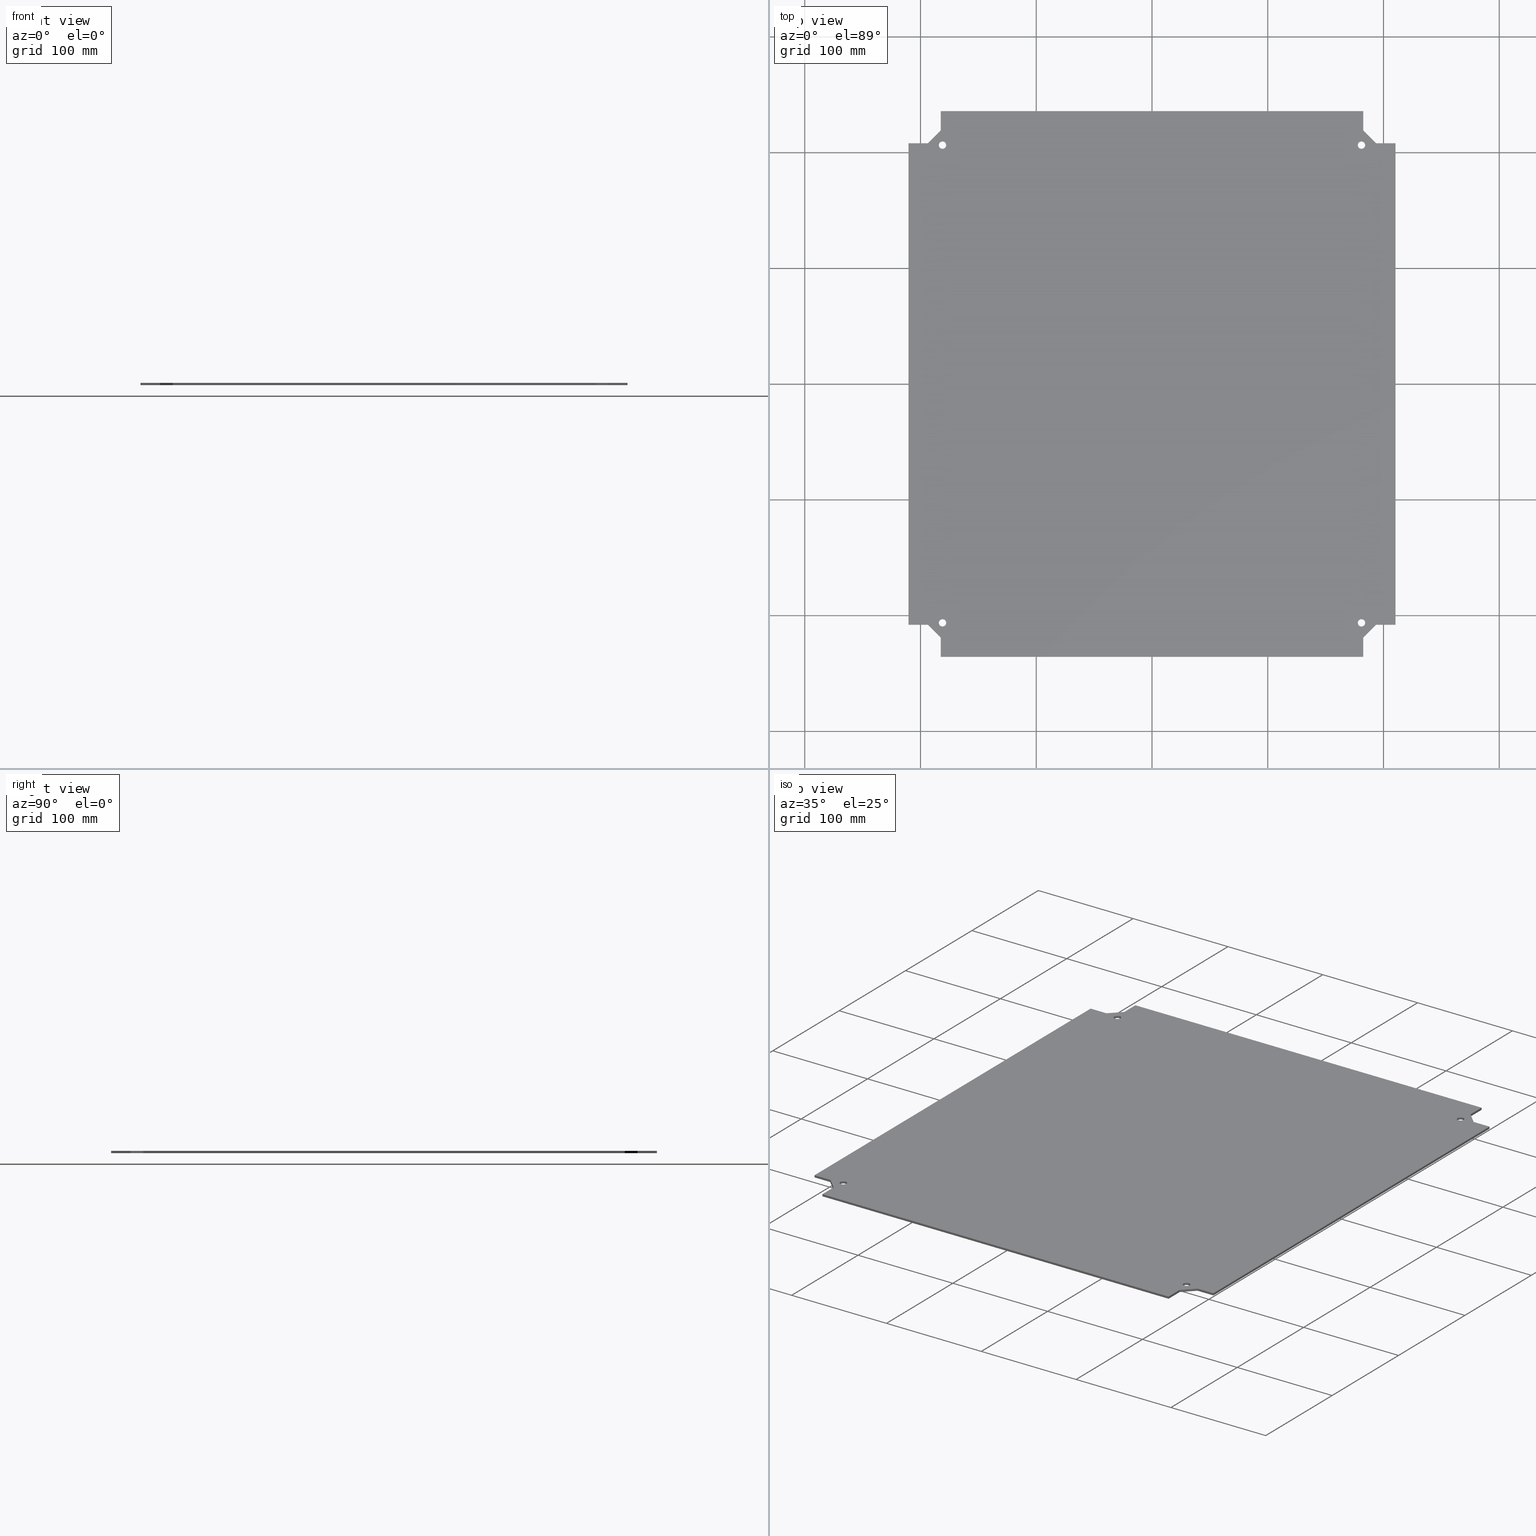
[diagram: canonical four-view strip — front | top / right | iso, engineering-drawing reading convention]
A machine part, canonical four-view strip (front | top / right | iso — engineering-drawing reading convention). The complete STEP part file that produces these views, byte-faithful:
ISO-10303-21;
HEADER;
/****************************************************************
 * Generated by software with PDE/Lib inside                    *
 * PDElib Version v51a, created Tue 12/06/2005                  *
 * International Technegroup Inc. (www.iti-oh.com)              *
 ****************************************************************/
FILE_DESCRIPTION((''),'2;1');
FILE_NAME('D:\\PROJECT 2008\\CUSTOMER PROJECT-2008\\STAHLIN USA\\2D-3D PROJECTS\\DIAMOND SHIELD SERIES 12.09.08\\RM\\VARIABLE HEIGHT STATIONARY PANEL\\DS SERIES - VARIABLE HEIGHT STATIONARY PANEL\\STEP\\P1816STAL.stp','2008-09-12T15:51:21',('design2''s'),(''),'Autodesk Inventor 11','Autodesk Inventor 11','');
FILE_SCHEMA(('AUTOMOTIVE_DESIGN { 1 0 10303 214 1 1 1 1 }'));
ENDSEC;
DATA;
#5=APPLICATION_CONTEXT('automotive design');
#6=APPLICATION_PROTOCOL_DEFINITION('Draft International Standard','automotive_design',1998,#5);
#7=PRODUCT_CONTEXT('None',#5,'mechanical');
#8=PRODUCT('P1816STAL','P1816STAL','None',(#7));
#9=PRODUCT_RELATED_PRODUCT_CATEGORY('part','description',(#8));
#10=PRODUCT_DEFINITION_FORMATION('None','None',#8);
#11=PRODUCT_DEFINITION_CONTEXT('part definition',#5,'design');
#12=PRODUCT_DEFINITION('None','None',#10,#11);
#18=(NAMED_UNIT(*)PLANE_ANGLE_UNIT()SI_UNIT($,.RADIAN.));
#19=DIMENSIONAL_EXPONENTS(0.0,0.0,0.0,0.0,0.0,0.0,0.0);
#20=PLANE_ANGLE_MEASURE_WITH_UNIT(PLANE_ANGLE_MEASURE(0.017453292500000),#18);
#24=(CONVERSION_BASED_UNIT('DEGREE',#20)NAMED_UNIT(#19)PLANE_ANGLE_UNIT());
#28=(NAMED_UNIT(*)SI_UNIT($,.STERADIAN.)SOLID_ANGLE_UNIT());
#32=(LENGTH_UNIT()NAMED_UNIT(*)SI_UNIT(.CENTI.,.METRE.));
#33=DIMENSIONAL_EXPONENTS(1.0,0.0,0.0,0.0,0.0,0.0,0.0);
#34=LENGTH_MEASURE_WITH_UNIT(LENGTH_MEASURE(2.540000000000000),#32);
#38=(CONVERSION_BASED_UNIT('INCH',#34)LENGTH_UNIT()NAMED_UNIT(#33));
#40=UNCERTAINTY_MEASURE_WITH_UNIT(LENGTH_MEASURE(0.000393700787402),#38,'DISTANCE_ACCURACY_VALUE','');
#42=(GEOMETRIC_REPRESENTATION_CONTEXT(3)GLOBAL_UNCERTAINTY_ASSIGNED_CONTEXT((#40))GLOBAL_UNIT_ASSIGNED_CONTEXT((#24,#28,#38))REPRESENTATION_CONTEXT('None','None'));
#43=AXIS2_PLACEMENT_3D('',#44,#45,#46);
#44=CARTESIAN_POINT('',(0.0,0.0,0.0));
#45=DIRECTION('',(0.0,0.0,1.0));
#46=DIRECTION('',(1.0,0.0,0.0));
#47=SHAPE_REPRESENTATION('',(#43),#42);
#48=PRODUCT_DEFINITION_SHAPE('','',#12);
#49=SHAPE_DEFINITION_REPRESENTATION(#48,#47);
#50=CARTESIAN_POINT('',(7.125000000000014,-8.124999999999986,0.0));
#51=DIRECTION('',(0.0,0.0,1.0));
#52=DIRECTION('',(-1.0,0.0,0.0));
#53=AXIS2_PLACEMENT_3D('',#50,#51,#52);
#54=CYLINDRICAL_SURFACE('',#53,0.125000000000000);
#55=CARTESIAN_POINT('',(7.250000000000014,-8.124999999999986,0.080000000000000));
#56=VERTEX_POINT('',#55);
#57=CARTESIAN_POINT('',(7.125000000000014,-8.124999999999986,0.080000000000000));
#58=DIRECTION('',(0.0,0.0,-1.0));
#59=DIRECTION('',(-1.0,0.0,0.0));
#60=AXIS2_PLACEMENT_3D('',#57,#58,#59);
#61=CIRCLE('',#60,0.125000000000000);
#62=EDGE_CURVE('',#56,#56,#61,.T.);
#63=ORIENTED_EDGE('',*,*,#62,.F.);
#64=EDGE_LOOP('',(#63));
#65=FACE_OUTER_BOUND('',#64,.T.);
#66=CARTESIAN_POINT('',(7.250000000000014,-8.124999999999986,0.0));
#67=VERTEX_POINT('',#66);
#68=CARTESIAN_POINT('',(7.125000000000014,-8.124999999999986,0.0));
#69=DIRECTION('',(0.0,0.0,1.0));
#70=DIRECTION('',(-1.0,0.0,0.0));
#71=AXIS2_PLACEMENT_3D('',#68,#69,#70);
#72=CIRCLE('',#71,0.125000000000000);
#73=EDGE_CURVE('',#67,#67,#72,.T.);
#74=ORIENTED_EDGE('',*,*,#73,.F.);
#75=EDGE_LOOP('',(#74));
#76=FACE_BOUND('',#75,.T.);
#77=ADVANCED_FACE('',(#65,#76),#54,.F.);
#78=CARTESIAN_POINT('',(7.124999999999977,8.125000000000020,0.0));
#79=DIRECTION('',(0.0,0.0,1.0));
#80=DIRECTION('',(-1.0,0.0,0.0));
#81=AXIS2_PLACEMENT_3D('',#78,#79,#80);
#82=CYLINDRICAL_SURFACE('',#81,0.125000000000000);
#83=CARTESIAN_POINT('',(7.249999999999976,8.125000000000020,0.080000000000000));
#84=VERTEX_POINT('',#83);
#85=CARTESIAN_POINT('',(7.124999999999977,8.125000000000020,0.080000000000000));
#86=DIRECTION('',(0.0,0.0,-1.0));
#87=DIRECTION('',(-1.0,0.0,0.0));
#88=AXIS2_PLACEMENT_3D('',#85,#86,#87);
#89=CIRCLE('',#88,0.125000000000000);
#90=EDGE_CURVE('',#84,#84,#89,.T.);
#91=ORIENTED_EDGE('',*,*,#90,.F.);
#92=EDGE_LOOP('',(#91));
#93=FACE_OUTER_BOUND('',#92,.T.);
#94=CARTESIAN_POINT('',(7.249999999999976,8.125000000000020,0.0));
#95=VERTEX_POINT('',#94);
#96=CARTESIAN_POINT('',(7.124999999999977,8.125000000000020,0.0));
#97=DIRECTION('',(0.0,0.0,1.0));
#98=DIRECTION('',(-1.0,0.0,0.0));
#99=AXIS2_PLACEMENT_3D('',#96,#97,#98);
#100=CIRCLE('',#99,0.125000000000000);
#101=EDGE_CURVE('',#95,#95,#100,.T.);
#102=ORIENTED_EDGE('',*,*,#101,.F.);
#103=EDGE_LOOP('',(#102));
#104=FACE_BOUND('',#103,.T.);
#105=ADVANCED_FACE('',(#93,#104),#82,.F.);
#106=CARTESIAN_POINT('',(-7.124999999999981,-8.125000000000018,0.0));
#107=DIRECTION('',(0.0,0.0,1.0));
#108=DIRECTION('',(-1.0,0.0,0.0));
#109=AXIS2_PLACEMENT_3D('',#106,#107,#108);
#110=CYLINDRICAL_SURFACE('',#109,0.125000000000000);
#111=CARTESIAN_POINT('',(-6.999999999999981,-8.125000000000018,0.080000000000000));
#112=VERTEX_POINT('',#111);
#113=CARTESIAN_POINT('',(-7.124999999999981,-8.125000000000018,0.080000000000000));
#114=DIRECTION('',(0.0,0.0,-1.0));
#115=DIRECTION('',(-1.0,0.0,0.0));
#116=AXIS2_PLACEMENT_3D('',#113,#114,#115);
#117=CIRCLE('',#116,0.125000000000000);
#118=EDGE_CURVE('',#112,#112,#117,.T.);
#119=ORIENTED_EDGE('',*,*,#118,.F.);
#120=EDGE_LOOP('',(#119));
#121=FACE_OUTER_BOUND('',#120,.T.);
#122=CARTESIAN_POINT('',(-6.999999999999981,-8.125000000000018,0.0));
#123=VERTEX_POINT('',#122);
#124=CARTESIAN_POINT('',(-7.124999999999981,-8.125000000000018,0.0));
#125=DIRECTION('',(0.0,0.0,1.0));
#126=DIRECTION('',(-1.0,0.0,0.0));
#127=AXIS2_PLACEMENT_3D('',#124,#125,#126);
#128=CIRCLE('',#127,0.125000000000000);
#129=EDGE_CURVE('',#123,#123,#128,.T.);
#130=ORIENTED_EDGE('',*,*,#129,.F.);
#131=EDGE_LOOP('',(#130));
#132=FACE_BOUND('',#131,.T.);
#133=ADVANCED_FACE('',(#121,#132),#110,.F.);
#134=CARTESIAN_POINT('',(-7.125000000000019,8.124999999999984,0.0));
#135=DIRECTION('',(0.0,0.0,1.0));
#136=DIRECTION('',(-1.0,0.0,0.0));
#137=AXIS2_PLACEMENT_3D('',#134,#135,#136);
#138=CYLINDRICAL_SURFACE('',#137,0.125000000000000);
#139=CARTESIAN_POINT('',(-7.000000000000019,8.124999999999984,0.080000000000000));
#140=VERTEX_POINT('',#139);
#141=CARTESIAN_POINT('',(-7.125000000000019,8.124999999999984,0.080000000000000));
#142=DIRECTION('',(0.0,0.0,-1.0));
#143=DIRECTION('',(-1.0,0.0,0.0));
#144=AXIS2_PLACEMENT_3D('',#141,#142,#143);
#145=CIRCLE('',#144,0.125000000000000);
#146=EDGE_CURVE('',#140,#140,#145,.T.);
#147=ORIENTED_EDGE('',*,*,#146,.F.);
#148=EDGE_LOOP('',(#147));
#149=FACE_OUTER_BOUND('',#148,.T.);
#150=CARTESIAN_POINT('',(-7.000000000000019,8.124999999999984,0.0));
#151=VERTEX_POINT('',#150);
#152=CARTESIAN_POINT('',(-7.125000000000019,8.124999999999984,0.0));
#153=DIRECTION('',(0.0,0.0,1.0));
#154=DIRECTION('',(-1.0,0.0,0.0));
#155=AXIS2_PLACEMENT_3D('',#152,#153,#154);
#156=CIRCLE('',#155,0.125000000000000);
#157=EDGE_CURVE('',#151,#151,#156,.T.);
#158=ORIENTED_EDGE('',*,*,#157,.F.);
#159=EDGE_LOOP('',(#158));
#160=FACE_BOUND('',#159,.T.);
#161=ADVANCED_FACE('',(#149,#160),#138,.F.);
#162=CARTESIAN_POINT('',(7.187149999999984,9.281250000000014,0.0));
#163=DIRECTION('',(1.0,0.0,0.0));
#164=DIRECTION('',(0.0,0.0,-1.0));
#165=AXIS2_PLACEMENT_3D('',#162,#163,#164);
#166=PLANE('',#165);
#167=CARTESIAN_POINT('',(7.187149999999984,9.281250000000014,0.080000000000000));
#168=VERTEX_POINT('',#167);
#169=CARTESIAN_POINT('',(7.187149999999985,8.623950000000015,0.080000000000000));
#170=VERTEX_POINT('',#169);
#171=CARTESIAN_POINT('',(7.187149999999984,9.281250000000014,0.080000000000000));
#172=DIRECTION('',(0.0,-1.0,0.0));
#173=VECTOR('',#172,0.657299999999999);
#174=LINE('',#171,#173);
#175=EDGE_CURVE('',#168,#170,#174,.T.);
#176=ORIENTED_EDGE('',*,*,#175,.T.);
#177=CARTESIAN_POINT('',(7.187149999999985,8.623950000000015,0.0));
#178=VERTEX_POINT('',#177);
#179=CARTESIAN_POINT('',(7.187149999999985,8.623950000000015,0.0));
#180=DIRECTION('',(0.0,0.0,1.0));
#181=VECTOR('',#180,0.080000000000000);
#182=LINE('',#179,#181);
#183=EDGE_CURVE('',#178,#170,#182,.T.);
#184=ORIENTED_EDGE('',*,*,#183,.F.);
#185=CARTESIAN_POINT('',(7.187149999999984,9.281250000000014,0.0));
#186=VERTEX_POINT('',#185);
#187=CARTESIAN_POINT('',(7.187149999999984,9.281250000000014,0.0));
#188=DIRECTION('',(0.0,-1.0,0.0));
#189=VECTOR('',#188,0.657299999999999);
#190=LINE('',#187,#189);
#191=EDGE_CURVE('',#186,#178,#190,.T.);
#192=ORIENTED_EDGE('',*,*,#191,.F.);
#193=CARTESIAN_POINT('',(7.187149999999984,9.281250000000014,0.0));
#194=DIRECTION('',(0.0,0.0,1.0));
#195=VECTOR('',#194,0.080000000000000);
#196=LINE('',#193,#195);
#197=EDGE_CURVE('',#186,#168,#196,.T.);
#198=ORIENTED_EDGE('',*,*,#197,.T.);
#199=EDGE_LOOP('',(#176,#184,#192,#198));
#200=FACE_OUTER_BOUND('',#199,.T.);
#201=ADVANCED_FACE('',(#200),#166,.T.);
#202=CARTESIAN_POINT('',(7.187149999999985,8.623950000000015,0.0));
#203=DIRECTION('',(0.707106781186544,0.707106781186551,0.0));
#204=DIRECTION('',(0.0,0.0,-1.0));
#205=AXIS2_PLACEMENT_3D('',#202,#203,#204);
#206=PLANE('',#205);
#207=CARTESIAN_POINT('',(7.623949999999986,8.187150000000019,0.080000000000000));
#208=VERTEX_POINT('',#207);
#209=CARTESIAN_POINT('',(7.187149999999985,8.623950000000015,0.080000000000000));
#210=DIRECTION('',(0.707106781186551,-0.707106781186544,0.0));
#211=VECTOR('',#210,0.617728484044566);
#212=LINE('',#209,#211);
#213=EDGE_CURVE('',#170,#208,#212,.T.);
#214=ORIENTED_EDGE('',*,*,#213,.T.);
#215=CARTESIAN_POINT('',(7.623949999999986,8.187150000000019,0.0));
#216=VERTEX_POINT('',#215);
#217=CARTESIAN_POINT('',(7.623949999999986,8.187150000000019,0.0));
#218=DIRECTION('',(0.0,0.0,1.0));
#219=VECTOR('',#218,0.080000000000000);
#220=LINE('',#217,#219);
#221=EDGE_CURVE('',#216,#208,#220,.T.);
#222=ORIENTED_EDGE('',*,*,#221,.F.);
#223=CARTESIAN_POINT('',(7.187149999999985,8.623950000000015,0.0));
#224=DIRECTION('',(0.707106781186551,-0.707106781186544,0.0));
#225=VECTOR('',#224,0.617728484044566);
#226=LINE('',#223,#225);
#227=EDGE_CURVE('',#178,#216,#226,.T.);
#228=ORIENTED_EDGE('',*,*,#227,.F.);
#229=ORIENTED_EDGE('',*,*,#183,.T.);
#230=EDGE_LOOP('',(#214,#222,#228,#229));
#231=FACE_OUTER_BOUND('',#230,.T.);
#232=ADVANCED_FACE('',(#231),#206,.T.);
#233=CARTESIAN_POINT('',(7.623949999999986,8.187150000000019,0.0));
#234=DIRECTION('',(0.0,1.0,0.0));
#235=DIRECTION('',(0.0,0.0,1.0));
#236=AXIS2_PLACEMENT_3D('',#233,#234,#235);
#237=PLANE('',#236);
#238=CARTESIAN_POINT('',(8.281249999999984,8.187150000000022,0.080000000000000));
#239=VERTEX_POINT('',#238);
#240=CARTESIAN_POINT('',(7.623949999999986,8.187150000000019,0.080000000000000));
#241=DIRECTION('',(1.0,0.0,0.0));
#242=VECTOR('',#241,0.657299999999998);
#243=LINE('',#240,#242);
#244=EDGE_CURVE('',#208,#239,#243,.T.);
#245=ORIENTED_EDGE('',*,*,#244,.T.);
#246=CARTESIAN_POINT('',(8.281249999999984,8.187150000000022,0.0));
#247=VERTEX_POINT('',#246);
#248=CARTESIAN_POINT('',(8.281249999999984,8.187150000000022,0.0));
#249=DIRECTION('',(0.0,0.0,1.0));
#250=VECTOR('',#249,0.080000000000000);
#251=LINE('',#248,#250);
#252=EDGE_CURVE('',#247,#239,#251,.T.);
#253=ORIENTED_EDGE('',*,*,#252,.F.);
#254=CARTESIAN_POINT('',(7.623949999999986,8.187150000000019,0.0));
#255=DIRECTION('',(1.0,0.0,0.0));
#256=VECTOR('',#255,0.657299999999998);
#257=LINE('',#254,#256);
#258=EDGE_CURVE('',#216,#247,#257,.T.);
#259=ORIENTED_EDGE('',*,*,#258,.F.);
#260=ORIENTED_EDGE('',*,*,#221,.T.);
#261=EDGE_LOOP('',(#245,#253,#259,#260));
#262=FACE_OUTER_BOUND('',#261,.T.);
#263=ADVANCED_FACE('',(#262),#237,.T.);
#264=CARTESIAN_POINT('',(8.281249999999984,8.187150000000022,0.0));
#265=DIRECTION('',(1.0,0.0,0.0));
#266=DIRECTION('',(0.0,0.0,-1.0));
#267=AXIS2_PLACEMENT_3D('',#264,#265,#266);
#268=PLANE('',#267);
#269=CARTESIAN_POINT('',(8.281250000000021,-8.187149999999983,0.080000000000000));
#270=VERTEX_POINT('',#269);
#271=CARTESIAN_POINT('',(8.281249999999984,8.187150000000022,0.080000000000000));
#272=DIRECTION('',(0.0,-1.0,0.0));
#273=VECTOR('',#272,16.374300000000005);
#274=LINE('',#271,#273);
#275=EDGE_CURVE('',#239,#270,#274,.T.);
#276=ORIENTED_EDGE('',*,*,#275,.T.);
#277=CARTESIAN_POINT('',(8.281250000000021,-8.187149999999983,0.0));
#278=VERTEX_POINT('',#277);
#279=CARTESIAN_POINT('',(8.281250000000021,-8.187149999999983,0.0));
#280=DIRECTION('',(0.0,0.0,1.0));
#281=VECTOR('',#280,0.080000000000000);
#282=LINE('',#279,#281);
#283=EDGE_CURVE('',#278,#270,#282,.T.);
#284=ORIENTED_EDGE('',*,*,#283,.F.);
#285=CARTESIAN_POINT('',(8.281249999999984,8.187150000000022,0.0));
#286=DIRECTION('',(0.0,-1.0,0.0));
#287=VECTOR('',#286,16.374300000000005);
#288=LINE('',#285,#287);
#289=EDGE_CURVE('',#247,#278,#288,.T.);
#290=ORIENTED_EDGE('',*,*,#289,.F.);
#291=ORIENTED_EDGE('',*,*,#252,.T.);
#292=EDGE_LOOP('',(#276,#284,#290,#291));
#293=FACE_OUTER_BOUND('',#292,.T.);
#294=ADVANCED_FACE('',(#293),#268,.T.);
#295=CARTESIAN_POINT('',(8.281250000000021,-8.187149999999983,0.0));
#296=DIRECTION('',(0.0,-1.0,0.0));
#297=DIRECTION('',(0.0,0.0,-1.0));
#298=AXIS2_PLACEMENT_3D('',#295,#296,#297);
#299=PLANE('',#298);
#300=CARTESIAN_POINT('',(7.623950000000023,-8.187149999999985,0.080000000000000));
#301=VERTEX_POINT('',#300);
#302=CARTESIAN_POINT('',(8.281250000000021,-8.187149999999983,0.080000000000000));
#303=DIRECTION('',(-1.0,0.0,0.0));
#304=VECTOR('',#303,0.657299999999998);
#305=LINE('',#302,#304);
#306=EDGE_CURVE('',#270,#301,#305,.T.);
#307=ORIENTED_EDGE('',*,*,#306,.T.);
#308=CARTESIAN_POINT('',(7.623950000000023,-8.187149999999985,0.0));
#309=VERTEX_POINT('',#308);
#310=CARTESIAN_POINT('',(7.623950000000023,-8.187149999999985,0.0));
#311=DIRECTION('',(0.0,0.0,1.0));
#312=VECTOR('',#311,0.080000000000000);
#313=LINE('',#310,#312);
#314=EDGE_CURVE('',#309,#301,#313,.T.);
#315=ORIENTED_EDGE('',*,*,#314,.F.);
#316=CARTESIAN_POINT('',(8.281250000000021,-8.187149999999983,0.0));
#317=DIRECTION('',(-1.0,0.0,0.0));
#318=VECTOR('',#317,0.657299999999998);
#319=LINE('',#316,#318);
#320=EDGE_CURVE('',#278,#309,#319,.T.);
#321=ORIENTED_EDGE('',*,*,#320,.F.);
#322=ORIENTED_EDGE('',*,*,#283,.T.);
#323=EDGE_LOOP('',(#307,#315,#321,#322));
#324=FACE_OUTER_BOUND('',#323,.T.);
#325=ADVANCED_FACE('',(#324),#299,.T.);
#326=CARTESIAN_POINT('',(7.623950000000023,-8.187149999999985,0.0));
#327=DIRECTION('',(0.707106781186546,-0.707106781186549,0.0));
#328=DIRECTION('',(0.0,0.0,-1.0));
#329=AXIS2_PLACEMENT_3D('',#326,#327,#328);
#330=PLANE('',#329);
#331=CARTESIAN_POINT('',(7.187150000000026,-8.623949999999981,0.080000000000000));
#332=VERTEX_POINT('',#331);
#333=CARTESIAN_POINT('',(7.623950000000023,-8.187149999999985,0.080000000000000));
#334=DIRECTION('',(-0.707106781186548,-0.707106781186547,0.0));
#335=VECTOR('',#334,0.617728484044563);
#336=LINE('',#333,#335);
#337=EDGE_CURVE('',#301,#332,#336,.T.);
#338=ORIENTED_EDGE('',*,*,#337,.T.);
#339=CARTESIAN_POINT('',(7.187150000000026,-8.623949999999981,0.0));
#340=VERTEX_POINT('',#339);
#341=CARTESIAN_POINT('',(7.187150000000026,-8.623949999999981,0.0));
#342=DIRECTION('',(0.0,0.0,1.0));
#343=VECTOR('',#342,0.080000000000000);
#344=LINE('',#341,#343);
#345=EDGE_CURVE('',#340,#332,#344,.T.);
#346=ORIENTED_EDGE('',*,*,#345,.F.);
#347=CARTESIAN_POINT('',(7.623950000000023,-8.187149999999985,0.0));
#348=DIRECTION('',(-0.707106781186548,-0.707106781186547,0.0));
#349=VECTOR('',#348,0.617728484044563);
#350=LINE('',#347,#349);
#351=EDGE_CURVE('',#309,#340,#350,.T.);
#352=ORIENTED_EDGE('',*,*,#351,.F.);
#353=ORIENTED_EDGE('',*,*,#314,.T.);
#354=EDGE_LOOP('',(#338,#346,#352,#353));
#355=FACE_OUTER_BOUND('',#354,.T.);
#356=ADVANCED_FACE('',(#355),#330,.T.);
#357=CARTESIAN_POINT('',(7.187150000000026,-8.623949999999981,0.0));
#358=DIRECTION('',(1.0,0.0,0.0));
#359=DIRECTION('',(0.0,0.0,-1.0));
#360=AXIS2_PLACEMENT_3D('',#357,#358,#359);
#361=PLANE('',#360);
#362=CARTESIAN_POINT('',(7.187150000000028,-9.281249999999981,0.080000000000000));
#363=VERTEX_POINT('',#362);
#364=CARTESIAN_POINT('',(7.187150000000026,-8.623949999999981,0.080000000000000));
#365=DIRECTION('',(0.0,-1.0,0.0));
#366=VECTOR('',#365,0.657299999999999);
#367=LINE('',#364,#366);
#368=EDGE_CURVE('',#332,#363,#367,.T.);
#369=ORIENTED_EDGE('',*,*,#368,.T.);
#370=CARTESIAN_POINT('',(7.187150000000028,-9.281249999999981,0.0));
#371=VERTEX_POINT('',#370);
#372=CARTESIAN_POINT('',(7.187150000000028,-9.281249999999981,0.0));
#373=DIRECTION('',(0.0,0.0,1.0));
#374=VECTOR('',#373,0.080000000000000);
#375=LINE('',#372,#374);
#376=EDGE_CURVE('',#371,#363,#375,.T.);
#377=ORIENTED_EDGE('',*,*,#376,.F.);
#378=CARTESIAN_POINT('',(7.187150000000026,-8.623949999999981,0.0));
#379=DIRECTION('',(0.0,-1.0,0.0));
#380=VECTOR('',#379,0.657299999999999);
#381=LINE('',#378,#380);
#382=EDGE_CURVE('',#340,#371,#381,.T.);
#383=ORIENTED_EDGE('',*,*,#382,.F.);
#384=ORIENTED_EDGE('',*,*,#345,.T.);
#385=EDGE_LOOP('',(#369,#377,#383,#384));
#386=FACE_OUTER_BOUND('',#385,.T.);
#387=ADVANCED_FACE('',(#386),#361,.T.);
#388=CARTESIAN_POINT('',(7.187150000000028,-9.281249999999981,0.0));
#389=DIRECTION('',(0.0,-1.0,0.0));
#390=DIRECTION('',(0.0,0.0,-1.0));
#391=AXIS2_PLACEMENT_3D('',#388,#389,#390);
#392=PLANE('',#391);
#393=CARTESIAN_POINT('',(-7.187149999999982,-9.281250000000018,0.080000000000000));
#394=VERTEX_POINT('',#393);
#395=CARTESIAN_POINT('',(7.187150000000028,-9.281249999999981,0.080000000000000));
#396=DIRECTION('',(-1.0,0.0,0.0));
#397=VECTOR('',#396,14.374300000000009);
#398=LINE('',#395,#397);
#399=EDGE_CURVE('',#363,#394,#398,.T.);
#400=ORIENTED_EDGE('',*,*,#399,.T.);
#401=CARTESIAN_POINT('',(-7.187149999999982,-9.281250000000018,0.0));
#402=VERTEX_POINT('',#401);
#403=CARTESIAN_POINT('',(-7.187149999999982,-9.281250000000018,0.0));
#404=DIRECTION('',(0.0,0.0,1.0));
#405=VECTOR('',#404,0.080000000000000);
#406=LINE('',#403,#405);
#407=EDGE_CURVE('',#402,#394,#406,.T.);
#408=ORIENTED_EDGE('',*,*,#407,.F.);
#409=CARTESIAN_POINT('',(7.187150000000028,-9.281249999999981,0.0));
#410=DIRECTION('',(-1.0,0.0,0.0));
#411=VECTOR('',#410,14.374300000000009);
#412=LINE('',#409,#411);
#413=EDGE_CURVE('',#371,#402,#412,.T.);
#414=ORIENTED_EDGE('',*,*,#413,.F.);
#415=ORIENTED_EDGE('',*,*,#376,.T.);
#416=EDGE_LOOP('',(#400,#408,#414,#415));
#417=FACE_OUTER_BOUND('',#416,.T.);
#418=ADVANCED_FACE('',(#417),#392,.T.);
#419=CARTESIAN_POINT('',(-7.187149999999982,-9.281250000000018,0.0));
#420=DIRECTION('',(-1.0,0.0,0.0));
#421=DIRECTION('',(0.0,0.0,1.0));
#422=AXIS2_PLACEMENT_3D('',#419,#420,#421);
#423=PLANE('',#422);
#424=CARTESIAN_POINT('',(-7.187149999999984,-8.623950000000017,0.080000000000000));
#425=VERTEX_POINT('',#424);
#426=CARTESIAN_POINT('',(-7.187149999999982,-9.281250000000018,0.080000000000000));
#427=DIRECTION('',(0.0,1.0,0.0));
#428=VECTOR('',#427,0.657300000000001);
#429=LINE('',#426,#428);
#430=EDGE_CURVE('',#394,#425,#429,.T.);
#431=ORIENTED_EDGE('',*,*,#430,.T.);
#432=CARTESIAN_POINT('',(-7.187149999999984,-8.623950000000017,0.0));
#433=VERTEX_POINT('',#432);
#434=CARTESIAN_POINT('',(-7.187149999999984,-8.623950000000017,0.0));
#435=DIRECTION('',(0.0,0.0,1.0));
#436=VECTOR('',#435,0.080000000000000);
#437=LINE('',#434,#436);
#438=EDGE_CURVE('',#433,#425,#437,.T.);
#439=ORIENTED_EDGE('',*,*,#438,.F.);
#440=CARTESIAN_POINT('',(-7.187149999999982,-9.281250000000018,0.0));
#441=DIRECTION('',(0.0,1.0,0.0));
#442=VECTOR('',#441,0.657300000000001);
#443=LINE('',#440,#442);
#444=EDGE_CURVE('',#402,#433,#443,.T.);
#445=ORIENTED_EDGE('',*,*,#444,.F.);
#446=ORIENTED_EDGE('',*,*,#407,.T.);
#447=EDGE_LOOP('',(#431,#439,#445,#446));
#448=FACE_OUTER_BOUND('',#447,.T.);
#449=ADVANCED_FACE('',(#448),#423,.T.);
#450=CARTESIAN_POINT('',(-7.187149999999984,-8.623950000000017,0.0));
#451=DIRECTION('',(-0.707106781186544,-0.707106781186551,0.0));
#452=DIRECTION('',(0.0,0.0,1.0));
#453=AXIS2_PLACEMENT_3D('',#450,#451,#452);
#454=PLANE('',#453);
#455=CARTESIAN_POINT('',(-7.623949999999988,-8.187150000000015,0.080000000000000));
#456=VERTEX_POINT('',#455);
#457=CARTESIAN_POINT('',(-7.187149999999984,-8.623950000000017,0.080000000000000));
#458=DIRECTION('',(-0.707106781186550,0.707106781186545,0.0));
#459=VECTOR('',#458,0.617728484044572);
#460=LINE('',#457,#459);
#461=EDGE_CURVE('',#425,#456,#460,.T.);
#462=ORIENTED_EDGE('',*,*,#461,.T.);
#463=CARTESIAN_POINT('',(-7.623949999999988,-8.187150000000015,0.0));
#464=VERTEX_POINT('',#463);
#465=CARTESIAN_POINT('',(-7.623949999999988,-8.187150000000015,0.0));
#466=DIRECTION('',(0.0,0.0,1.0));
#467=VECTOR('',#466,0.080000000000000);
#468=LINE('',#465,#467);
#469=EDGE_CURVE('',#464,#456,#468,.T.);
#470=ORIENTED_EDGE('',*,*,#469,.F.);
#471=CARTESIAN_POINT('',(-7.187149999999984,-8.623950000000017,0.0));
#472=DIRECTION('',(-0.707106781186550,0.707106781186545,0.0));
#473=VECTOR('',#472,0.617728484044572);
#474=LINE('',#471,#473);
#475=EDGE_CURVE('',#433,#464,#474,.T.);
#476=ORIENTED_EDGE('',*,*,#475,.F.);
#477=ORIENTED_EDGE('',*,*,#438,.T.);
#478=EDGE_LOOP('',(#462,#470,#476,#477));
#479=FACE_OUTER_BOUND('',#478,.T.);
#480=ADVANCED_FACE('',(#479),#454,.T.);
#481=CARTESIAN_POINT('',(-7.623949999999988,-8.187150000000015,0.0));
#482=DIRECTION('',(0.0,-1.0,0.0));
#483=DIRECTION('',(0.0,0.0,-1.0));
#484=AXIS2_PLACEMENT_3D('',#481,#482,#483);
#485=PLANE('',#484);
#486=CARTESIAN_POINT('',(-8.281249999999984,-8.187150000000019,0.080000000000000));
#487=VERTEX_POINT('',#486);
#488=CARTESIAN_POINT('',(-7.623949999999988,-8.187150000000015,0.080000000000000));
#489=DIRECTION('',(-1.0,0.0,0.0));
#490=VECTOR('',#489,0.657299999999996);
#491=LINE('',#488,#490);
#492=EDGE_CURVE('',#456,#487,#491,.T.);
#493=ORIENTED_EDGE('',*,*,#492,.T.);
#494=CARTESIAN_POINT('',(-8.281249999999984,-8.187150000000019,0.0));
#495=VERTEX_POINT('',#494);
#496=CARTESIAN_POINT('',(-8.281249999999984,-8.187150000000019,0.0));
#497=DIRECTION('',(0.0,0.0,1.0));
#498=VECTOR('',#497,0.080000000000000);
#499=LINE('',#496,#498);
#500=EDGE_CURVE('',#495,#487,#499,.T.);
#501=ORIENTED_EDGE('',*,*,#500,.F.);
#502=CARTESIAN_POINT('',(-7.623949999999988,-8.187150000000015,0.0));
#503=DIRECTION('',(-1.0,0.0,0.0));
#504=VECTOR('',#503,0.657299999999996);
#505=LINE('',#502,#504);
#506=EDGE_CURVE('',#464,#495,#505,.T.);
#507=ORIENTED_EDGE('',*,*,#506,.F.);
#508=ORIENTED_EDGE('',*,*,#469,.T.);
#509=EDGE_LOOP('',(#493,#501,#507,#508));
#510=FACE_OUTER_BOUND('',#509,.T.);
#511=ADVANCED_FACE('',(#510),#485,.T.);
#512=CARTESIAN_POINT('',(-8.281249999999984,-8.187150000000019,0.0));
#513=DIRECTION('',(-1.0,0.0,0.0));
#514=DIRECTION('',(0.0,0.0,1.0));
#515=AXIS2_PLACEMENT_3D('',#512,#513,#514);
#516=PLANE('',#515);
#517=CARTESIAN_POINT('',(-8.281250000000021,8.187149999999983,0.080000000000000));
#518=VERTEX_POINT('',#517);
#519=CARTESIAN_POINT('',(-8.281249999999984,-8.187150000000019,0.080000000000000));
#520=DIRECTION('',(0.0,1.0,0.0));
#521=VECTOR('',#520,16.374300000000002);
#522=LINE('',#519,#521);
#523=EDGE_CURVE('',#487,#518,#522,.T.);
#524=ORIENTED_EDGE('',*,*,#523,.T.);
#525=CARTESIAN_POINT('',(-8.281250000000021,8.187149999999983,0.0));
#526=VERTEX_POINT('',#525);
#527=CARTESIAN_POINT('',(-8.281250000000021,8.187149999999983,0.0));
#528=DIRECTION('',(0.0,0.0,1.0));
#529=VECTOR('',#528,0.080000000000000);
#530=LINE('',#527,#529);
#531=EDGE_CURVE('',#526,#518,#530,.T.);
#532=ORIENTED_EDGE('',*,*,#531,.F.);
#533=CARTESIAN_POINT('',(-8.281249999999984,-8.187150000000019,0.0));
#534=DIRECTION('',(0.0,1.0,0.0));
#535=VECTOR('',#534,16.374300000000002);
#536=LINE('',#533,#535);
#537=EDGE_CURVE('',#495,#526,#536,.T.);
#538=ORIENTED_EDGE('',*,*,#537,.F.);
#539=ORIENTED_EDGE('',*,*,#500,.T.);
#540=EDGE_LOOP('',(#524,#532,#538,#539));
#541=FACE_OUTER_BOUND('',#540,.T.);
#542=ADVANCED_FACE('',(#541),#516,.T.);
#543=CARTESIAN_POINT('',(-8.281250000000021,8.187149999999983,0.0));
#544=DIRECTION('',(0.0,1.0,0.0));
#545=DIRECTION('',(0.0,0.0,1.0));
#546=AXIS2_PLACEMENT_3D('',#543,#544,#545);
#547=PLANE('',#546);
#548=CARTESIAN_POINT('',(-7.623950000000022,8.187149999999985,0.080000000000000));
#549=VERTEX_POINT('',#548);
#550=CARTESIAN_POINT('',(-8.281250000000021,8.187149999999983,0.080000000000000));
#551=DIRECTION('',(1.0,0.0,0.0));
#552=VECTOR('',#551,0.657299999999999);
#553=LINE('',#550,#552);
#554=EDGE_CURVE('',#518,#549,#553,.T.);
#555=ORIENTED_EDGE('',*,*,#554,.T.);
#556=CARTESIAN_POINT('',(-7.623950000000022,8.187149999999985,0.0));
#557=VERTEX_POINT('',#556);
#558=CARTESIAN_POINT('',(-7.623950000000022,8.187149999999985,0.0));
#559=DIRECTION('',(0.0,0.0,1.0));
#560=VECTOR('',#559,0.080000000000000);
#561=LINE('',#558,#560);
#562=EDGE_CURVE('',#557,#549,#561,.T.);
#563=ORIENTED_EDGE('',*,*,#562,.F.);
#564=CARTESIAN_POINT('',(-8.281250000000021,8.187149999999983,0.0));
#565=DIRECTION('',(1.0,0.0,0.0));
#566=VECTOR('',#565,0.657299999999999);
#567=LINE('',#564,#566);
#568=EDGE_CURVE('',#526,#557,#567,.T.);
#569=ORIENTED_EDGE('',*,*,#568,.F.);
#570=ORIENTED_EDGE('',*,*,#531,.T.);
#571=EDGE_LOOP('',(#555,#563,#569,#570));
#572=FACE_OUTER_BOUND('',#571,.T.);
#573=ADVANCED_FACE('',(#572),#547,.T.);
#574=CARTESIAN_POINT('',(-7.623950000000022,8.187149999999985,0.0));
#575=DIRECTION('',(-0.707106781186549,0.707106781186546,0.0));
#576=DIRECTION('',(0.0,0.0,1.0));
#577=AXIS2_PLACEMENT_3D('',#574,#575,#576);
#578=PLANE('',#577);
#579=CARTESIAN_POINT('',(-7.187150000000025,8.623949999999983,0.080000000000000));
#580=VERTEX_POINT('',#579);
#581=CARTESIAN_POINT('',(-7.623950000000022,8.187149999999985,0.080000000000000));
#582=DIRECTION('',(0.707106781186547,0.707106781186548,0.0));
#583=VECTOR('',#582,0.617728484044565);
#584=LINE('',#581,#583);
#585=EDGE_CURVE('',#549,#580,#584,.T.);
#586=ORIENTED_EDGE('',*,*,#585,.T.);
#587=CARTESIAN_POINT('',(-7.187150000000025,8.623949999999983,0.0));
#588=VERTEX_POINT('',#587);
#589=CARTESIAN_POINT('',(-7.187150000000025,8.623949999999983,0.0));
#590=DIRECTION('',(0.0,0.0,1.0));
#591=VECTOR('',#590,0.080000000000000);
#592=LINE('',#589,#591);
#593=EDGE_CURVE('',#588,#580,#592,.T.);
#594=ORIENTED_EDGE('',*,*,#593,.F.);
#595=CARTESIAN_POINT('',(-7.623950000000022,8.187149999999985,0.0));
#596=DIRECTION('',(0.707106781186547,0.707106781186548,0.0));
#597=VECTOR('',#596,0.617728484044565);
#598=LINE('',#595,#597);
#599=EDGE_CURVE('',#557,#588,#598,.T.);
#600=ORIENTED_EDGE('',*,*,#599,.F.);
#601=ORIENTED_EDGE('',*,*,#562,.T.);
#602=EDGE_LOOP('',(#586,#594,#600,#601));
#603=FACE_OUTER_BOUND('',#602,.T.);
#604=ADVANCED_FACE('',(#603),#578,.T.);
#605=CARTESIAN_POINT('',(-7.187150000000025,8.623949999999983,0.0));
#606=DIRECTION('',(-1.0,0.0,0.0));
#607=DIRECTION('',(0.0,0.0,1.0));
#608=AXIS2_PLACEMENT_3D('',#605,#606,#607);
#609=PLANE('',#608);
#610=CARTESIAN_POINT('',(-7.187150000000026,9.281249999999984,0.080000000000000));
#611=VERTEX_POINT('',#610);
#612=CARTESIAN_POINT('',(-7.187150000000025,8.623949999999983,0.080000000000000));
#613=DIRECTION('',(0.0,1.0,0.0));
#614=VECTOR('',#613,0.657300000000001);
#615=LINE('',#612,#614);
#616=EDGE_CURVE('',#580,#611,#615,.T.);
#617=ORIENTED_EDGE('',*,*,#616,.T.);
#618=CARTESIAN_POINT('',(-7.187150000000026,9.281249999999984,0.0));
#619=VERTEX_POINT('',#618);
#620=CARTESIAN_POINT('',(-7.187150000000026,9.281249999999984,0.0));
#621=DIRECTION('',(0.0,0.0,1.0));
#622=VECTOR('',#621,0.080000000000000);
#623=LINE('',#620,#622);
#624=EDGE_CURVE('',#619,#611,#623,.T.);
#625=ORIENTED_EDGE('',*,*,#624,.F.);
#626=CARTESIAN_POINT('',(-7.187150000000025,8.623949999999983,0.0));
#627=DIRECTION('',(0.0,1.0,0.0));
#628=VECTOR('',#627,0.657300000000001);
#629=LINE('',#626,#628);
#630=EDGE_CURVE('',#588,#619,#629,.T.);
#631=ORIENTED_EDGE('',*,*,#630,.F.);
#632=ORIENTED_EDGE('',*,*,#593,.T.);
#633=EDGE_LOOP('',(#617,#625,#631,#632));
#634=FACE_OUTER_BOUND('',#633,.T.);
#635=ADVANCED_FACE('',(#634),#609,.T.);
#636=CARTESIAN_POINT('',(-7.187150000000026,9.281249999999984,0.0));
#637=DIRECTION('',(0.0,1.0,0.0));
#638=DIRECTION('',(0.0,0.0,1.0));
#639=AXIS2_PLACEMENT_3D('',#636,#637,#638);
#640=PLANE('',#639);
#641=CARTESIAN_POINT('',(-7.187150000000026,9.281249999999984,0.080000000000000));
#642=DIRECTION('',(1.0,0.0,0.0));
#643=VECTOR('',#642,14.374300000000009);
#644=LINE('',#641,#643);
#645=EDGE_CURVE('',#611,#168,#644,.T.);
#646=ORIENTED_EDGE('',*,*,#645,.T.);
#647=ORIENTED_EDGE('',*,*,#197,.F.);
#648=CARTESIAN_POINT('',(-7.187150000000026,9.281249999999984,0.0));
#649=DIRECTION('',(1.0,0.0,0.0));
#650=VECTOR('',#649,14.374300000000009);
#651=LINE('',#648,#650);
#652=EDGE_CURVE('',#619,#186,#651,.T.);
#653=ORIENTED_EDGE('',*,*,#652,.F.);
#654=ORIENTED_EDGE('',*,*,#624,.T.);
#655=EDGE_LOOP('',(#646,#647,#653,#654));
#656=FACE_OUTER_BOUND('',#655,.T.);
#657=ADVANCED_FACE('',(#656),#640,.T.);
#658=CARTESIAN_POINT('',(4.698779E-016,9.288283E-016,0.080000000000000));
#659=DIRECTION('',(0.0,0.0,1.0));
#660=DIRECTION('',(1.0,0.0,0.0));
#661=AXIS2_PLACEMENT_3D('',#658,#659,#660);
#662=PLANE('',#661);
#663=ORIENTED_EDGE('',*,*,#175,.F.);
#664=ORIENTED_EDGE('',*,*,#645,.F.);
#665=ORIENTED_EDGE('',*,*,#616,.F.);
#666=ORIENTED_EDGE('',*,*,#585,.F.);
#667=ORIENTED_EDGE('',*,*,#554,.F.);
#668=ORIENTED_EDGE('',*,*,#523,.F.);
#669=ORIENTED_EDGE('',*,*,#492,.F.);
#670=ORIENTED_EDGE('',*,*,#461,.F.);
#671=ORIENTED_EDGE('',*,*,#430,.F.);
#672=ORIENTED_EDGE('',*,*,#399,.F.);
#673=ORIENTED_EDGE('',*,*,#368,.F.);
#674=ORIENTED_EDGE('',*,*,#337,.F.);
#675=ORIENTED_EDGE('',*,*,#306,.F.);
#676=ORIENTED_EDGE('',*,*,#275,.F.);
#677=ORIENTED_EDGE('',*,*,#244,.F.);
#678=ORIENTED_EDGE('',*,*,#213,.F.);
#679=EDGE_LOOP('',(#663,#664,#665,#666,#667,#668,#669,#670,#671,#672,#673,#674,#675,#676,#677,#678));
#680=FACE_OUTER_BOUND('',#679,.T.);
#681=ORIENTED_EDGE('',*,*,#62,.T.);
#682=EDGE_LOOP('',(#681));
#683=FACE_BOUND('',#682,.T.);
#684=ORIENTED_EDGE('',*,*,#90,.T.);
#685=EDGE_LOOP('',(#684));
#686=FACE_BOUND('',#685,.T.);
#687=ORIENTED_EDGE('',*,*,#118,.T.);
#688=EDGE_LOOP('',(#687));
#689=FACE_BOUND('',#688,.T.);
#690=ORIENTED_EDGE('',*,*,#146,.T.);
#691=EDGE_LOOP('',(#690));
#692=FACE_BOUND('',#691,.T.);
#693=ADVANCED_FACE('',(#680,#683,#686,#689,#692),#662,.T.);
#694=CARTESIAN_POINT('',(3.824587E-016,6.884257E-016,0.0));
#695=DIRECTION('',(0.0,0.0,1.0));
#696=DIRECTION('',(1.0,0.0,0.0));
#697=AXIS2_PLACEMENT_3D('',#694,#695,#696);
#698=PLANE('',#697);
#699=ORIENTED_EDGE('',*,*,#652,.T.);
#700=ORIENTED_EDGE('',*,*,#191,.T.);
#701=ORIENTED_EDGE('',*,*,#227,.T.);
#702=ORIENTED_EDGE('',*,*,#258,.T.);
#703=ORIENTED_EDGE('',*,*,#289,.T.);
#704=ORIENTED_EDGE('',*,*,#320,.T.);
#705=ORIENTED_EDGE('',*,*,#351,.T.);
#706=ORIENTED_EDGE('',*,*,#382,.T.);
#707=ORIENTED_EDGE('',*,*,#413,.T.);
#708=ORIENTED_EDGE('',*,*,#444,.T.);
#709=ORIENTED_EDGE('',*,*,#475,.T.);
#710=ORIENTED_EDGE('',*,*,#506,.T.);
#711=ORIENTED_EDGE('',*,*,#537,.T.);
#712=ORIENTED_EDGE('',*,*,#568,.T.);
#713=ORIENTED_EDGE('',*,*,#599,.T.);
#714=ORIENTED_EDGE('',*,*,#630,.T.);
#715=EDGE_LOOP('',(#699,#700,#701,#702,#703,#704,#705,#706,#707,#708,#709,#710,#711,#712,#713,#714));
#716=FACE_OUTER_BOUND('',#715,.T.);
#717=ORIENTED_EDGE('',*,*,#73,.T.);
#718=EDGE_LOOP('',(#717));
#719=FACE_BOUND('',#718,.T.);
#720=ORIENTED_EDGE('',*,*,#101,.T.);
#721=EDGE_LOOP('',(#720));
#722=FACE_BOUND('',#721,.T.);
#723=ORIENTED_EDGE('',*,*,#129,.T.);
#724=EDGE_LOOP('',(#723));
#725=FACE_BOUND('',#724,.T.);
#726=ORIENTED_EDGE('',*,*,#157,.T.);
#727=EDGE_LOOP('',(#726));
#728=FACE_BOUND('',#727,.T.);
#729=ADVANCED_FACE('',(#716,#719,#722,#725,#728),#698,.F.);
#730=CLOSED_SHELL('',(#77,#105,#133,#161,#201,#232,#263,#294,#325,#356,#387,#418,#449,#480,#511,#542,#573,#604,#635,#657,#693,#729));
#731=MANIFOLD_SOLID_BREP('',#730);
#732=COLOUR_RGB('Aluminum (Polished)',0.949020028114319,0.925490021705627,0.933332979679108);
#733=FILL_AREA_STYLE_COLOUR('Aluminum (Polished)',#732);
#734=FILL_AREA_STYLE('Aluminum (Polished)',(#733));
#735=SURFACE_STYLE_FILL_AREA(#734);
#736=SURFACE_SIDE_STYLE('Aluminum (Polished)',(#735));
#737=SURFACE_STYLE_USAGE(.BOTH.,#736);
#738=PRESENTATION_STYLE_ASSIGNMENT((#737));
#739=STYLED_ITEM('',(#738),#731);
#740=MECHANICAL_DESIGN_GEOMETRIC_PRESENTATION_REPRESENTATION('',(#739),#42);
#741=ADVANCED_BREP_SHAPE_REPRESENTATION('ABSR',(#731),#42);
#742=SHAPE_REPRESENTATION_RELATIONSHIP('SRR','None',#741,#47);
ENDSEC;
END-ISO-10303-21;
